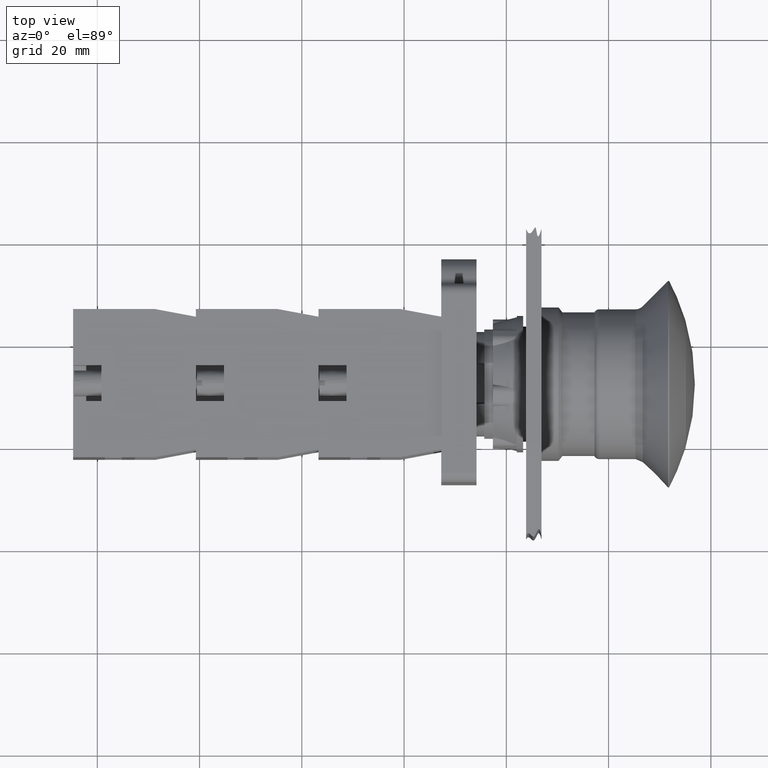
[diagram: clean part render]
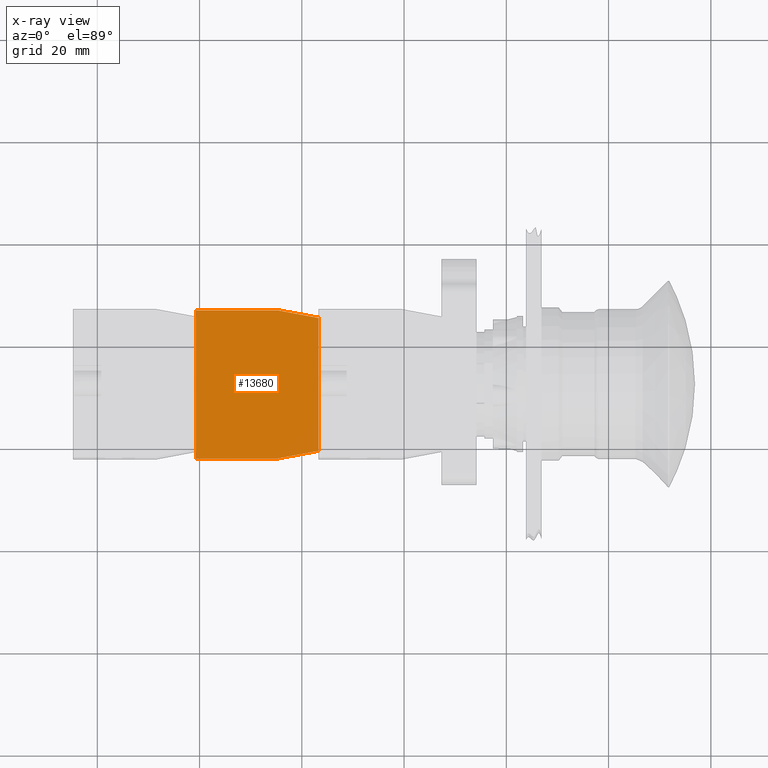
[diagram: x-ray — body ghosted, one internal face saturated and labeled with its STEP entity id]
A machine part, top view, then the same camera in x-ray: the body is ghosted and one INTERNAL B-rep face — a face not visible from any outside direction — is saturated and labeled: STEP entity #13680.
In plain terms, the highlighted planar face has unit normal (-0, -0, 1).
Its self-contained STEP definition (entity closure, byte-faithful):
#11985=CARTESIAN_POINT('',(-44.936741828918471,23.797073323279623,0.0));
#11986=VERTEX_POINT('',#11985);
#11993=CARTESIAN_POINT('',(-44.936741828918457,7.797073323279626,0.0));
#11994=VERTEX_POINT('',#11993);
#11995=CARTESIAN_POINT('',(-44.936741828918457,7.797073323279626,0.0));
#11996=DIRECTION('',(0.0,1.0,0.0));
#11997=VECTOR('',#11996,15.999999999999996);
#11998=LINE('',#11995,#11997);
#11999=EDGE_CURVE('',#11994,#11986,#11998,.T.);
#12176=CARTESIAN_POINT('',(-43.436741828918457,-0.202926676720380,0.0));
#12177=VERTEX_POINT('',#12176);
#12184=CARTESIAN_POINT('',(-17.436741828918457,-0.202926676720377,0.0));
#12185=VERTEX_POINT('',#12184);
#12186=CARTESIAN_POINT('',(-17.436741828918457,-0.202926676720377,0.0));
#12187=DIRECTION('',(-1.0,0.0,0.0));
#12188=VECTOR('',#12187,26.0);
#12189=LINE('',#12186,#12188);
#12190=EDGE_CURVE('',#12185,#12177,#12189,.T.);
#13534=CARTESIAN_POINT('',(-15.936741828918466,23.797073323279626,0.0));
#13535=VERTEX_POINT('',#13534);
#13542=CARTESIAN_POINT('',(-44.936741828918471,23.797073323279623,0.0));
#13543=DIRECTION('',(1.0,0.0,0.0));
#13544=VECTOR('',#13543,29.000000000000007);
#13545=LINE('',#13542,#13544);
#13546=EDGE_CURVE('',#11986,#13535,#13545,.T.);
#13582=CARTESIAN_POINT('',(-15.936741828918466,7.797073323279626,0.0));
#13583=VERTEX_POINT('',#13582);
#13590=CARTESIAN_POINT('',(-15.936741828918466,23.797073323279626,0.0));
#13591=DIRECTION('',(0.0,-1.0,0.0));
#13592=VECTOR('',#13591,16.0);
#13593=LINE('',#13590,#13592);
#13594=EDGE_CURVE('',#13535,#13583,#13593,.T.);
#13622=CARTESIAN_POINT('',(-15.936741828918466,7.797073323279626,0.0));
#13623=DIRECTION('',(-0.184288535050184,-0.982872186934322,0.0));
#13624=VECTOR('',#13623,8.139410298049855);
#13625=LINE('',#13622,#13624);
#13626=EDGE_CURVE('',#13583,#12185,#13625,.T.);
#13639=CARTESIAN_POINT('',(-43.436741828918457,-0.202926676720380,0.0));
#13640=DIRECTION('',(-0.184288535050185,0.982872186934322,0.0));
#13641=VECTOR('',#13640,8.139410298049860);
#13642=LINE('',#13639,#13641);
#13643=EDGE_CURVE('',#12177,#11994,#13642,.T.);
#13667=CARTESIAN_POINT('',(-30.436741828918464,12.124046801833057,0.0));
#13668=DIRECTION('',(0.0,0.0,1.0));
#13669=DIRECTION('',(1.0,0.0,0.0));
#13670=AXIS2_PLACEMENT_3D('',#13667,#13668,#13669);
#13671=PLANE('',#13670);
#13672=ORIENTED_EDGE('',*,*,#13546,.T.);
#13673=ORIENTED_EDGE('',*,*,#13594,.T.);
#13674=ORIENTED_EDGE('',*,*,#13626,.T.);
#13675=ORIENTED_EDGE('',*,*,#12190,.T.);
#13676=ORIENTED_EDGE('',*,*,#13643,.T.);
#13677=ORIENTED_EDGE('',*,*,#11999,.T.);
#13678=EDGE_LOOP('',(#13672,#13673,#13674,#13675,#13676,#13677));
#13679=FACE_OUTER_BOUND('',#13678,.T.);
#13680=ADVANCED_FACE('',(#13679),#13671,.F.);